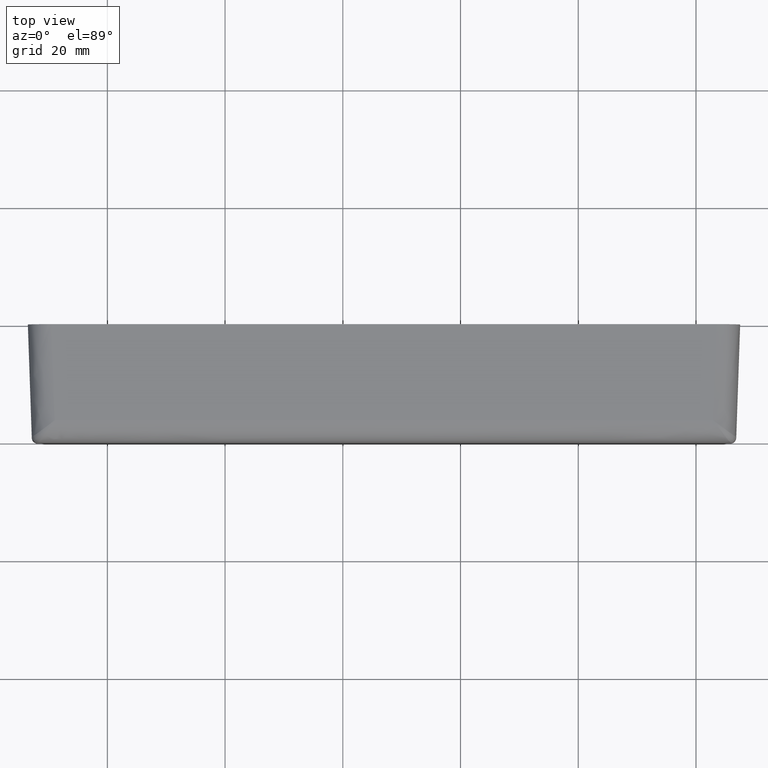
[diagram: clean part render]
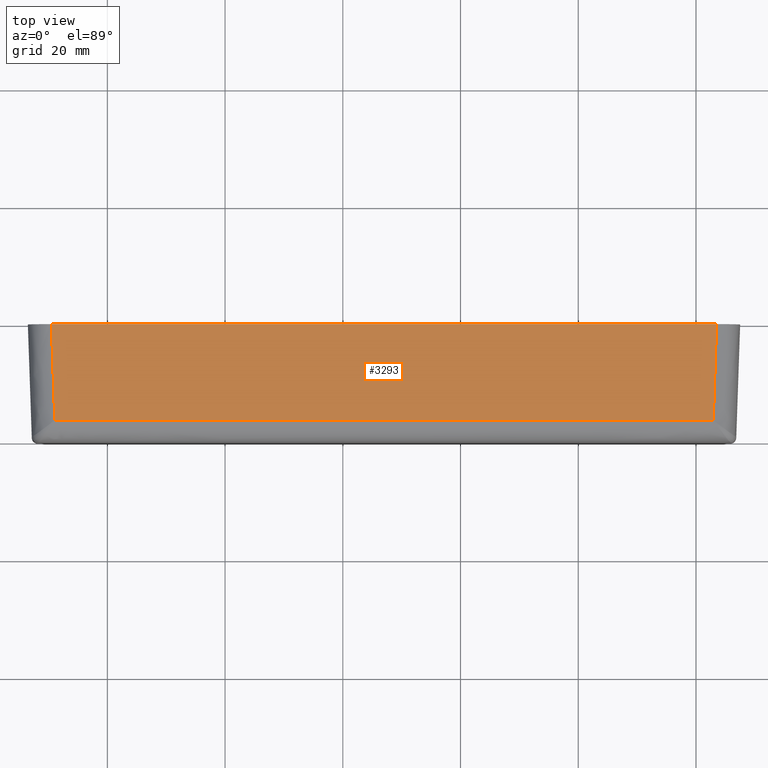
[diagram: same view with one face highlighted and labeled with its STEP entity id]
A machine part, top view. The second image highlights one B-rep face of the part: STEP entity #3293.
In plain terms, the highlighted face is a freeform B-spline surface patch.
Its self-contained STEP definition (entity closure, byte-faithful):
#1540=CARTESIAN_POINT('',(-108.938829812107800,-16.299159799049850,6.277562990073291));
#1541=VERTEX_POINT('',#1540);
#2068=CARTESIAN_POINT('',(2.938829812107570,-16.299159799049850,6.277562990073291));
#2069=VERTEX_POINT('',#2068);
#2441=CARTESIAN_POINT('',(3.508008710210840,0.0,7.500000000000000));
#2442=VERTEX_POINT('',#2441);
#2456=CARTESIAN_POINT('',(2.938829812107570,-16.299159799049850,6.277562990073291));
#2457=CARTESIAN_POINT('',(3.508008710210840,0.0,7.500000000000000));
#2458=QUASI_UNIFORM_CURVE('',1,(#2456,#2457),.UNSPECIFIED.,.F.,.U.);
#2459=EDGE_CURVE('',#2069,#2442,#2458,.T.);
#2480=CARTESIAN_POINT('',(-109.508008710211200,0.0,7.500000000000000));
#2481=VERTEX_POINT('',#2480);
#2482=CARTESIAN_POINT('',(-109.508008710211200,0.0,7.500000000000000));
#2483=CARTESIAN_POINT('',(-108.938829812107800,-16.299159799049850,6.277562990073291));
#2484=QUASI_UNIFORM_CURVE('',1,(#2482,#2483),.UNSPECIFIED.,.F.,.U.);
#2485=EDGE_CURVE('',#2481,#1541,#2484,.T.);
#2530=CARTESIAN_POINT('',(-108.938829812107800,-16.299159799049850,6.277562990073291));
#2531=CARTESIAN_POINT('',(2.938829812107570,-16.299159799049850,6.277562990073291));
#2532=QUASI_UNIFORM_CURVE('',1,(#2530,#2531),.UNSPECIFIED.,.F.,.U.);
#2533=EDGE_CURVE('',#1541,#2069,#2532,.T.);
#3278=CARTESIAN_POINT('',(-115.153160683141290,-17.113303105431150,6.216502240846042));
#3279=CARTESIAN_POINT('',(-115.153160683141290,0.814143452107148,7.561060760156685));
#3280=CARTESIAN_POINT('',(9.153161693582909,-17.113303105431150,6.216502240846042));
#3281=CARTESIAN_POINT('',(9.153161693582909,0.814143452107148,7.561060760156685));
#3282=B_SPLINE_SURFACE_WITH_KNOTS('',1,1,((#3278,#3280),(#3279,#3281)),.UNSPECIFIED.,.F.,.F.,.U.,(2,2),(2,2),(0.0,17.977796797306471),(0.0,124.306322376724200),.UNSPECIFIED.);
#3283=CARTESIAN_POINT('',(-109.508008710211200,0.0,7.500000000000000));
#3284=CARTESIAN_POINT('',(3.508008710210840,0.0,7.500000000000000));
#3285=QUASI_UNIFORM_CURVE('',1,(#3283,#3284),.UNSPECIFIED.,.F.,.U.);
#3286=EDGE_CURVE('',#2481,#2442,#3285,.T.);
#3287=ORIENTED_EDGE('',*,*,#3286,.F.);
#3288=ORIENTED_EDGE('',*,*,#2485,.T.);
#3289=ORIENTED_EDGE('',*,*,#2533,.T.);
#3290=ORIENTED_EDGE('',*,*,#2459,.T.);
#3291=EDGE_LOOP('',(#3287,#3288,#3289,#3290));
#3292=FACE_OUTER_BOUND('',#3291,.T.);
#3293=ADVANCED_FACE('',(#3292),#3282,.F.);